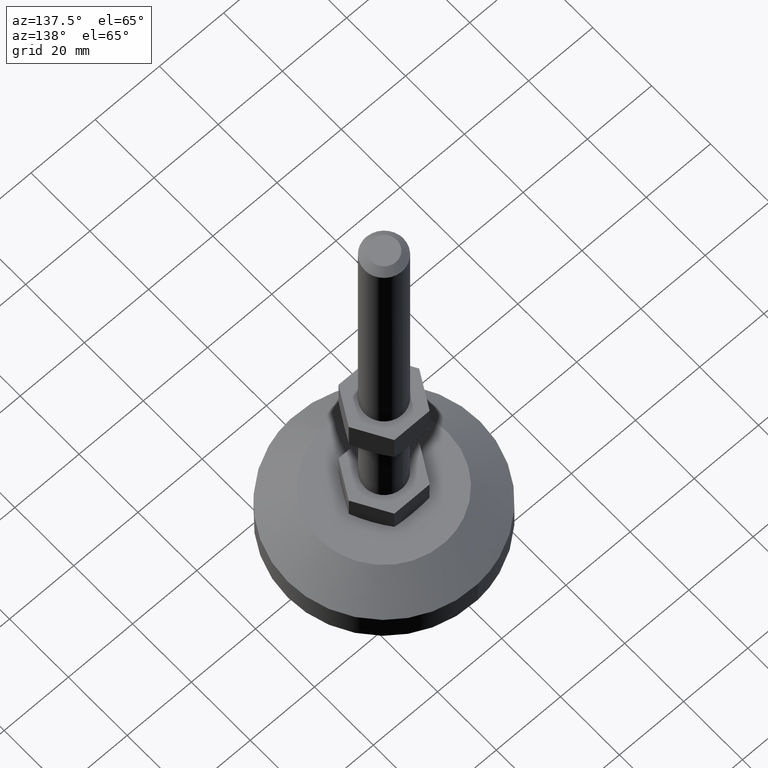
[diagram: clean part render]
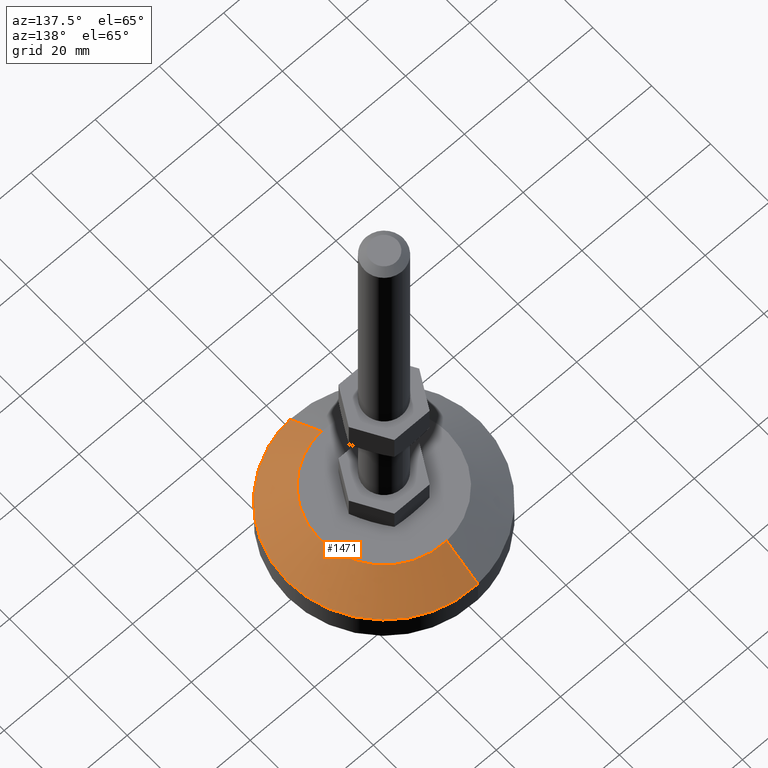
[diagram: same view with one face highlighted and labeled with its STEP entity id]
A machine part, auxiliary view. The second image highlights one B-rep face of the part: STEP entity #1471.
In plain terms, the highlighted face is a freeform B-spline surface patch.
Its self-contained STEP definition (entity closure, byte-faithful):
#889=CARTESIAN_POINT('',(-1.831444023938147,29.944044668167219,8.609004023740342));
#890=VERTEX_POINT('',#889);
#891=CARTESIAN_POINT('',(30.0,0.0,8.609004000000001));
#892=VERTEX_POINT('',#891);
#893=CARTESIAN_POINT('',(-1.831444023938146,29.944044668167219,8.609004023740342));
#894=CARTESIAN_POINT('',(-0.916582688409322,29.999999239093672,8.609004023399185));
#895=CARTESIAN_POINT('',(-0.000011798190031,29.999999250886891,8.609004023036521));
#896=CARTESIAN_POINT('',(29.999994281136242,29.999999636887026,8.609004011166352));
#897=CARTESIAN_POINT('',(30.0,0.0,8.609004000000001));
#905=(BOUNDED_CURVE()B_SPLINE_CURVE(2,(#893,#894,#895,#896,#897),.UNSPECIFIED.,.F.,.U.)B_SPLINE_CURVE_WITH_KNOTS((3,2,3),(0.239333102385685,0.250000000000000,0.500000000000000),.UNSPECIFIED.)CURVE()GEOMETRIC_REPRESENTATION_ITEM()RATIONAL_B_SPLINE_CURVE((0.976072342028049,0.987502952091959,1.0,0.707106781186547,1.0))REPRESENTATION_ITEM(''));
#906=EDGE_CURVE('',#890,#892,#905,.T.);
#908=CARTESIAN_POINT('',(1.831444023938148,-29.944044668167219,8.609004023740342));
#909=VERTEX_POINT('',#908);
#910=CARTESIAN_POINT('',(30.0,0.0,8.609004000000001));
#911=CARTESIAN_POINT('',(30.000006079326262,-28.221204585451574,8.609004011870171));
#912=CARTESIAN_POINT('',(1.831444023938148,-29.944044668167226,8.609004023740342));
#920=(BOUNDED_CURVE()B_SPLINE_CURVE(2,(#910,#911,#912),.UNSPECIFIED.,.F.,.U.)B_SPLINE_CURVE_WITH_KNOTS((3,3),(0.500000000000000,0.739333102385685),.UNSPECIFIED.)CURVE()GEOMETRIC_REPRESENTATION_ITEM()RATIONAL_B_SPLINE_CURVE((1.0,0.719603829094588,0.976072342028049))REPRESENTATION_ITEM(''));
#921=EDGE_CURVE('',#892,#909,#920,.T.);
#1405=CARTESIAN_POINT('',(-1.205708655813425,19.713162268831869,17.209774899999999));
#1406=CARTESIAN_POINT('',(18.507453613018441,20.918870924645290,17.209774900000003));
#1407=CARTESIAN_POINT('',(19.713162268831869,1.205708655813425,17.209774899999999));
#1408=CARTESIAN_POINT('',(20.918870924645290,-18.507453613018441,17.209774900000003));
#1409=CARTESIAN_POINT('',(1.205708655813425,-19.713162268831869,17.209774899999999));
#1410=CARTESIAN_POINT('',(-1.847099874301517,30.199815994751610,8.393984727499998));
#1411=CARTESIAN_POINT('',(28.352716120450101,32.046915869053130,8.393984727499998));
#1412=CARTESIAN_POINT('',(30.199815994751610,1.847099874301517,8.393984727499998));
#1413=CARTESIAN_POINT('',(32.046915869053130,-28.352716120450101,8.393984727499998));
#1414=CARTESIAN_POINT('',(1.847099874301517,-30.199815994751610,8.393984727499998));
#1422=(BOUNDED_SURFACE()B_SPLINE_SURFACE(2,1,((#1405,#1410),(#1406,#1411),(#1407,#1412),(#1408,#1413),(#1409,#1414)),.UNSPECIFIED.,.F.,.F.,.U.)B_SPLINE_SURFACE_WITH_KNOTS((3,2,3),(2,2),(0.0,50.130196386203828,100.260392772407700),(0.0,13.714935122998130),.UNSPECIFIED.)GEOMETRIC_REPRESENTATION_ITEM()RATIONAL_B_SPLINE_SURFACE(((1.0,1.0),(0.707106781186548,0.707106781186548),(1.0,1.0),(0.707106781186548,0.707106781186548),(1.0,1.0)))REPRESENTATION_ITEM('')SURFACE());
#1423=CARTESIAN_POINT('',(-1.220970791078516,19.962695968466541,16.999999999956000));
#1424=VERTEX_POINT('',#1423);
#1425=CARTESIAN_POINT('',(-1.220970791078516,19.962695968466541,16.999999999956000));
#1426=CARTESIAN_POINT('',(-1.831444023938147,29.944044668167219,8.609004023740342));
#1427=QUASI_UNIFORM_CURVE('',1,(#1425,#1426),.UNSPECIFIED.,.F.,.U.);
#1428=EDGE_CURVE('',#1424,#890,#1427,.T.);
#1429=ORIENTED_EDGE('',*,*,#1428,.F.);
#1430=CARTESIAN_POINT('',(20.0,0.0,17.0));
#1431=VERTEX_POINT('',#1430);
#1432=CARTESIAN_POINT('',(-1.220970791078515,19.962695968466541,16.999999999956003));
#1433=CARTESIAN_POINT('',(-0.611055266164551,20.000000000051582,16.999999999956643));
#1434=CARTESIAN_POINT('',(-3.105449E-012,20.000000000050779,16.999999999957300));
#1435=CARTESIAN_POINT('',(19.999999999998501,20.000000000024617,16.999999999979313));
#1436=CARTESIAN_POINT('',(20.0,0.0,17.0));
#1444=(BOUNDED_CURVE()B_SPLINE_CURVE(2,(#1432,#1433,#1434,#1435,#1436),.UNSPECIFIED.,.F.,.U.)B_SPLINE_CURVE_WITH_KNOTS((3,2,3),(0.239332962238699,0.250000000000000,0.500000000000000),.UNSPECIFIED.)CURVE()GEOMETRIC_REPRESENTATION_ITEM()RATIONAL_B_SPLINE_CURVE((0.976072041666196,0.987502787899552,1.0,0.707106781186548,1.0))REPRESENTATION_ITEM(''));
#1445=EDGE_CURVE('',#1424,#1431,#1444,.T.);
#1446=ORIENTED_EDGE('',*,*,#1445,.T.);
#1447=CARTESIAN_POINT('',(1.220970791078518,-19.962695968466541,16.999999999956000));
#1448=VERTEX_POINT('',#1447);
#1449=CARTESIAN_POINT('',(20.0,0.0,17.0));
#1450=CARTESIAN_POINT('',(20.000000000001599,-18.814121337782979,16.999999999977998));
#1451=CARTESIAN_POINT('',(1.220970791078518,-19.962695968466544,16.999999999956003));
#1459=(BOUNDED_CURVE()B_SPLINE_CURVE(2,(#1449,#1450,#1451),.UNSPECIFIED.,.F.,.U.)B_SPLINE_CURVE_WITH_KNOTS((3,3),(0.500000000000000,0.739332962238699),.UNSPECIFIED.)CURVE()GEOMETRIC_REPRESENTATION_ITEM()RATIONAL_B_SPLINE_CURVE((1.0,0.719603993286995,0.976072041666196))REPRESENTATION_ITEM(''));
#1460=EDGE_CURVE('',#1431,#1448,#1459,.T.);
#1461=ORIENTED_EDGE('',*,*,#1460,.T.);
#1462=CARTESIAN_POINT('',(1.220970791078518,-19.962695968466541,16.999999999956000));
#1463=CARTESIAN_POINT('',(1.831444023938148,-29.944044668167219,8.609004023740342));
#1464=QUASI_UNIFORM_CURVE('',1,(#1462,#1463),.UNSPECIFIED.,.F.,.U.);
#1465=EDGE_CURVE('',#1448,#909,#1464,.T.);
#1466=ORIENTED_EDGE('',*,*,#1465,.T.);
#1467=ORIENTED_EDGE('',*,*,#921,.F.);
#1468=ORIENTED_EDGE('',*,*,#906,.F.);
#1469=EDGE_LOOP('',(#1429,#1446,#1461,#1466,#1467,#1468));
#1470=FACE_OUTER_BOUND('',#1469,.T.);
#1471=ADVANCED_FACE('',(#1470),#1422,.T.);